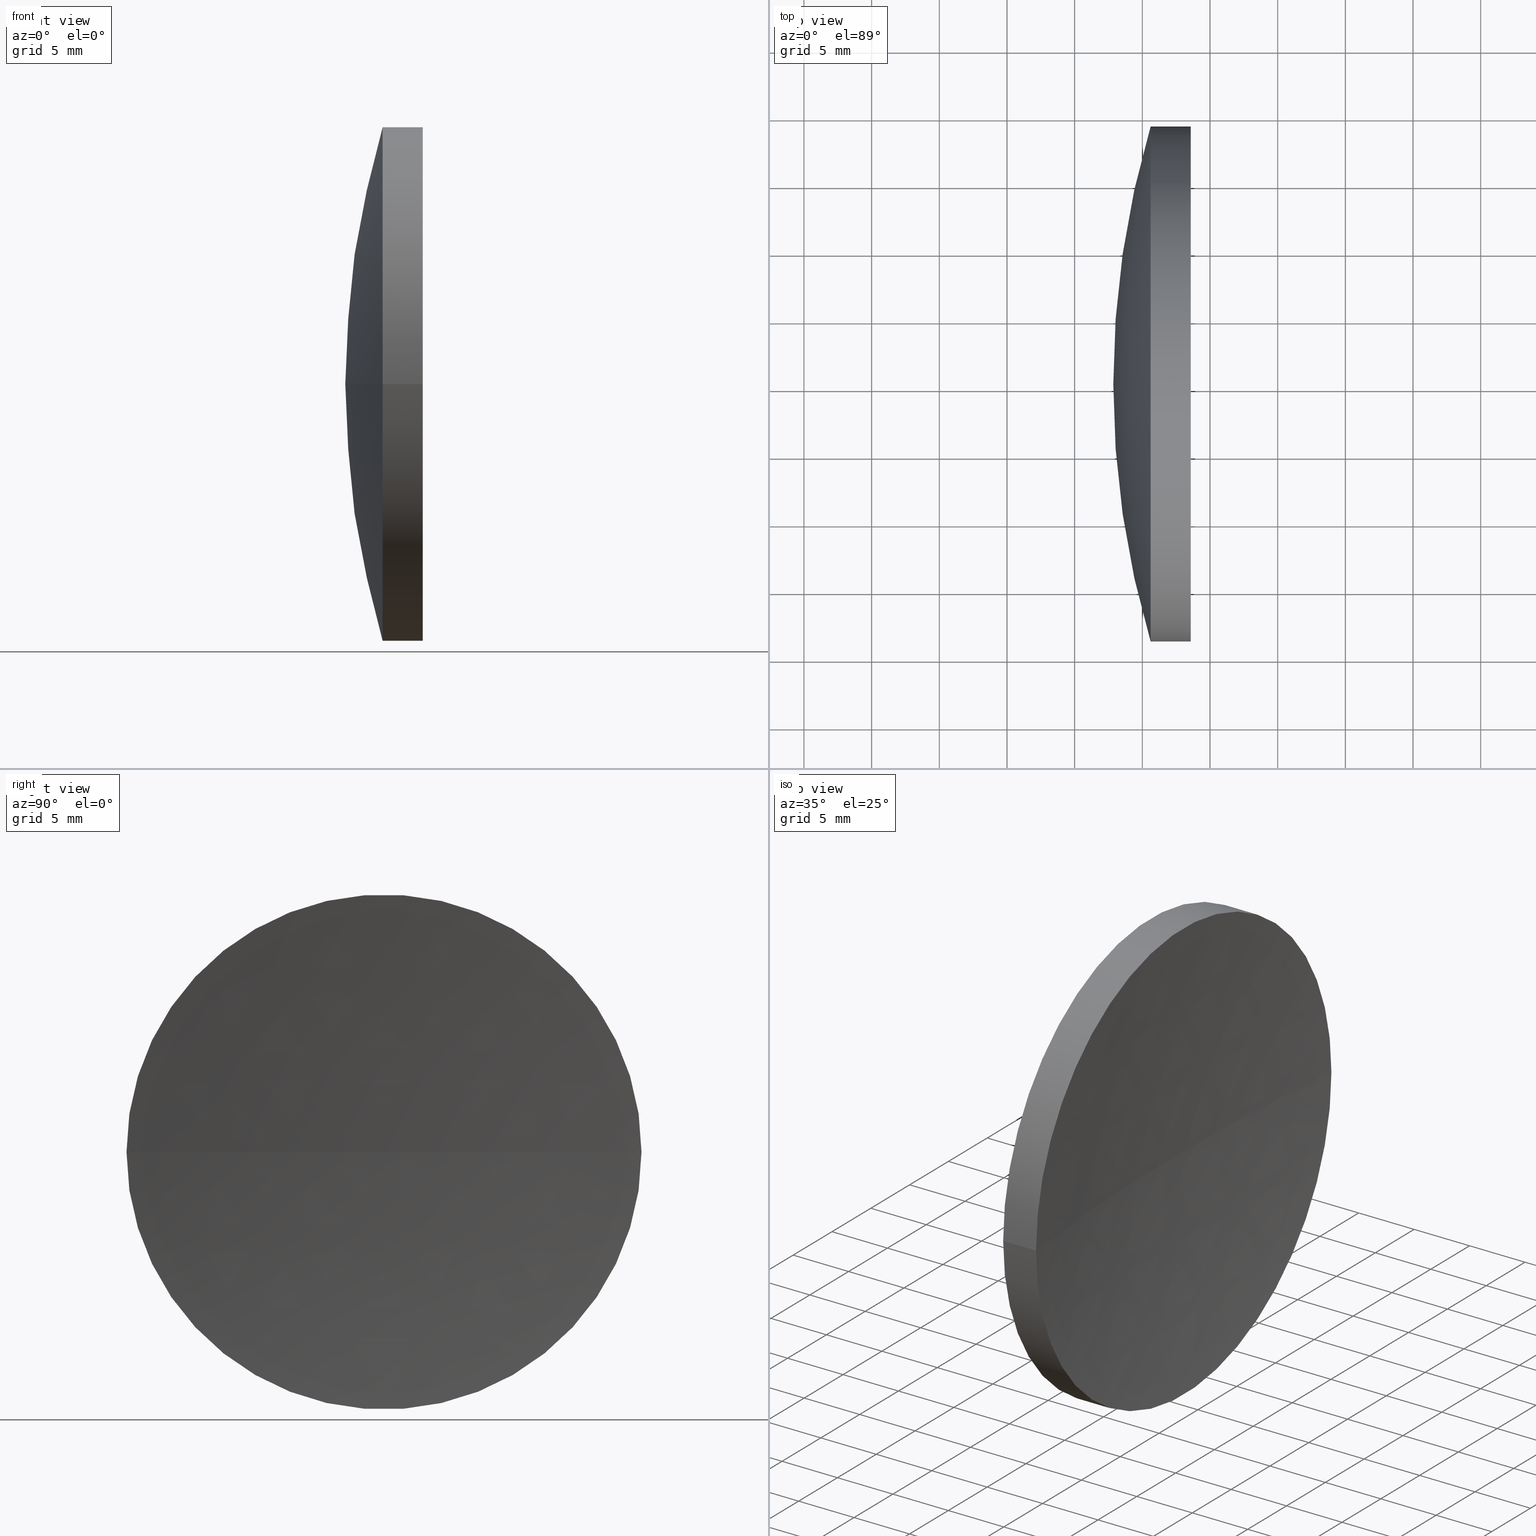
[diagram: canonical four-view strip — front | top / right | iso, engineering-drawing reading convention]
A machine part, canonical four-view strip (front | top / right | iso — engineering-drawing reading convention). The complete STEP part file that produces these views, byte-faithful:
ISO-10303-21;
HEADER;
FILE_DESCRIPTION (( 'STEP AP214' ),
    '1' );
FILE_NAME ('150016.STEP',
    '2019-07-04T08:19:54',
    ( '' ),
    ( '' ),
    'SwSTEP 2.0',
    'SolidWorks 2016',
    '' );
FILE_SCHEMA (( 'AUTOMOTIVE_DESIGN' ));
ENDSEC;

DATA;
#1 = ORIENTED_EDGE ( 'NONE', *, *, #2, .T. ) ;
#2 = EDGE_CURVE ( 'NONE', #31, #136, #70, .T. ) ;
#3 = SURFACE_SIDE_STYLE ('',( #114 ) ) ;
#4 =( NAMED_UNIT ( * ) PLANE_ANGLE_UNIT ( ) SI_UNIT ( $, .RADIAN. ) );
#5 = CIRCLE ( 'NONE', #56, 19.02499999999998800 ) ;
#6 = AXIS2_PLACEMENT_3D ( 'NONE', #130, #48, #153 ) ;
#7 = DIRECTION ( 'NONE',  ( 0.0000000000000000000, -0.0000000000000000000, 1.000000000000000000 ) ) ;
#8 = DIRECTION ( 'NONE',  ( -6.237208003512115800E-016, 1.000000000000000000, 0.0000000000000000000 ) ) ;
#9 = CARTESIAN_POINT ( 'NONE',  ( 125.6133060406054900, 46.19184047094029200, -2.329890535377837100E-015 ) ) ;
#10 = CARTESIAN_POINT ( 'NONE',  ( 125.6133060406054900, 65.21684047094032600, 0.0000000000000000000 ) ) ;
#11 = ORIENTED_EDGE ( 'NONE', *, *, #116, .F. ) ;
#12 = DIRECTION ( 'NONE',  ( -1.000000000000000000, -6.937607244762875000E-016, -0.0000000000000000000 ) ) ;
#13 = EDGE_CURVE ( 'NONE', #139, #180, #5, .T. ) ;
#14 = AXIS2_PLACEMENT_3D ( 'NONE', #33, #131, #157 ) ;
#15 = ADVANCED_BREP_SHAPE_REPRESENTATION ( '150016', ( #110, #144 ), #82 ) ;
#16 = AXIS2_PLACEMENT_3D ( 'NONE', #117, #190, #36 ) ;
#17 = CARTESIAN_POINT ( 'NONE',  ( 0.0000000000000000000, 0.0000000000000000000, 0.0000000000000000000 ) ) ;
#18 = CIRCLE ( 'NONE', #142, 178.0000000000000000 ) ;
#19 = AXIS2_PLACEMENT_3D ( 'NONE', #22, #155, #50 ) ;
#20 = DIRECTION ( 'NONE',  ( 7.294500818824949000E-016, -1.000000000000000000, 0.0000000000000000000 ) ) ;
#21 = CARTESIAN_POINT ( 'NONE',  ( 127.5554213155558000, 65.21684047094015600, 0.0000000000000000000 ) ) ;
#22 = CARTESIAN_POINT ( 'NONE',  ( 128.5750569386001700, 65.21684047094034000, 0.0000000000000000000 ) ) ;
#23 =( LENGTH_UNIT ( ) NAMED_UNIT ( * ) SI_UNIT ( .MILLI., .METRE. ) );
#24 = ORIENTED_EDGE ( 'NONE', *, *, #176, .F. ) ;
#25 = ORIENTED_EDGE ( 'NONE', *, *, #13, .F. ) ;
#26 = EDGE_LOOP ( 'NONE', ( #84, #67, #115, #11 ) ) ;
#27 = DIRECTION ( 'NONE',  ( -0.0000000000000000000, 0.0000000000000000000, -1.000000000000000000 ) ) ;
#28 = ADVANCED_FACE ( 'NONE', ( #34 ), #103, .T. ) ;
#29 = VERTEX_POINT ( 'NONE', #140 ) ;
#30 = CIRCLE ( 'NONE', #184, 67.00000000000002800 ) ;
#31 = VERTEX_POINT ( 'NONE', #87 ) ;
#32 = DIRECTION ( 'NONE',  ( 0.0000000000000000000, -1.000000000000000000, 0.0000000000000000000 ) ) ;
#33 = CARTESIAN_POINT ( 'NONE',  ( 305.5554213155558000, 65.21684047094026900, 0.0000000000000000000 ) ) ;
#34 = FACE_OUTER_BOUND ( 'NONE', #186, .T. ) ;
#35 = PRODUCT_DEFINITION_CONTEXT ( 'detailed design', #161, 'design' ) ;
#36 = DIRECTION ( 'NONE',  ( -6.237208003512115800E-016, 1.000000000000000000, 0.0000000000000000000 ) ) ;
#37 = MECHANICAL_DESIGN_GEOMETRIC_PRESENTATION_REPRESENTATION (  '', ( #78 ), #127 ) ;
#38 = FACE_OUTER_BOUND ( 'NONE', #41, .T. ) ;
#39 = ADVANCED_FACE ( 'NONE', ( #129 ), #61, .F. ) ;
#40 = ORIENTED_EDGE ( 'NONE', *, *, #72, .T. ) ;
#41 = EDGE_LOOP ( 'NONE', ( #183, #151, #40 ) ) ;
#42 = DIRECTION ( 'NONE',  ( -1.000000000000000000, -6.937607244762875000E-016, -0.0000000000000000000 ) ) ;
#43 = EDGE_CURVE ( 'NONE', #180, #139, #104, .T. ) ;
#44 = CARTESIAN_POINT ( 'NONE',  ( 189.8554213155557900, 65.21684047094031200, 0.0000000000000000000 ) ) ;
#45 = CARTESIAN_POINT ( 'NONE',  ( 128.5750569386001700, 84.24184047094037500, 0.0000000000000000000 ) ) ;
#46 = UNCERTAINTY_MEASURE_WITH_UNIT (LENGTH_MEASURE( 1.000000000000000100E-005 ), #124, 'distance_accuracy_value', 'NONE');
#47 = AXIS2_PLACEMENT_3D ( 'NONE', #44, #27, #162 ) ;
#48 = DIRECTION ( 'NONE',  ( -1.000000000000000000, -6.937607244762875000E-016, -0.0000000000000000000 ) ) ;
#49 = DIRECTION ( 'NONE',  ( 0.0000000000000000000, -1.000000000000000000, 0.0000000000000000000 ) ) ;
#50 = DIRECTION ( 'NONE',  ( 0.0000000000000000000, -1.000000000000000000, 0.0000000000000000000 ) ) ;
#51 = EDGE_LOOP ( 'NONE', ( #1, #145, #188 ) ) ;
#52 = CARTESIAN_POINT ( 'NONE',  ( 115.9444912979631700, 65.21684047094032600, 0.0000000000000000000 ) ) ;
#53 = AXIS2_PLACEMENT_3D ( 'NONE', #85, #185, #32 ) ;
#54 = CARTESIAN_POINT ( 'NONE',  ( 115.9444912979631800, 46.19184047094034200, 0.0000000000000000000 ) ) ;
#55 = CARTESIAN_POINT ( 'NONE',  ( 189.8554213155557900, 65.21684047094031200, 0.0000000000000000000 ) ) ;
#56 = AXIS2_PLACEMENT_3D ( 'NONE', #113, #169, #128 ) ;
#57 = VECTOR ( 'NONE', #12, 1000.000000000000000 ) ;
#58 = AXIS2_PLACEMENT_3D ( 'NONE', #10, #68, #49 ) ;
#59 = FILL_AREA_STYLE_COLOUR ( '', #94 ) ;
#60 =( NAMED_UNIT ( * ) SI_UNIT ( $, .STERADIAN. ) SOLID_ANGLE_UNIT ( ) );
#61 = SPHERICAL_SURFACE ( 'NONE', #191, 178.0000000000000000 ) ;
#62 = CARTESIAN_POINT ( 'NONE',  ( 115.9444912979631500, 84.24184047094031800, 2.329890535377837500E-015 ) ) ;
#63 = PRESENTATION_LAYER_ASSIGNMENT (  '', '', ( #78 ) ) ;
#64 = CIRCLE ( 'NONE', #53, 19.02499999999998100 ) ;
#65 = AXIS2_PLACEMENT_3D ( 'NONE', #52, #167, #20 ) ;
#66 = CIRCLE ( 'NONE', #152, 67.00000000000002800 ) ;
#67 = ORIENTED_EDGE ( 'NONE', *, *, #176, .T. ) ;
#68 = DIRECTION ( 'NONE',  ( -1.000000000000000000, -6.937607244762875000E-016, -0.0000000000000000000 ) ) ;
#69 = FILL_AREA_STYLE ('',( #100 ) ) ;
#70 = CIRCLE ( 'NONE', #58, 19.02499999999998100 ) ;
#71 = DIRECTION ( 'NONE',  ( -8.285246452426537700E-016, 1.000000000000000000, 0.0000000000000000000 ) ) ;
#72 = EDGE_CURVE ( 'NONE', #180, #81, #18, .T. ) ;
#73 = ORIENTED_EDGE ( 'NONE', *, *, #2, .F. ) ;
#74 = EDGE_CURVE ( 'NONE', #136, #31, #64, .T. ) ;
#75 = ADVANCED_FACE ( 'NONE', ( #109 ), #170, .T. ) ;
#76 = SPHERICAL_SURFACE ( 'NONE', #137, 67.00000000000002800 ) ;
#77 = SURFACE_STYLE_USAGE ( .BOTH. , #3 ) ;
#78 = STYLED_ITEM ( 'NONE', ( #120 ), #110 ) ;
#79 = DIRECTION ( 'NONE',  ( -8.496118506040342700E-032, 1.224646799147353200E-016, -1.000000000000000000 ) ) ;
#80 = FACE_OUTER_BOUND ( 'NONE', #51, .T. ) ;
#81 = VERTEX_POINT ( 'NONE', #21 ) ;
#82 =( GEOMETRIC_REPRESENTATION_CONTEXT ( 3 ) GLOBAL_UNCERTAINTY_ASSIGNED_CONTEXT ( ( #46 ) ) GLOBAL_UNIT_ASSIGNED_CONTEXT ( ( #124, #4, #60 ) ) REPRESENTATION_CONTEXT ( 'NONE', 'WORKASPACE' ) );
#83 = LINE ( 'NONE', #62, #112 ) ;
#84 = ORIENTED_EDGE ( 'NONE', *, *, #13, .T. ) ;
#85 = CARTESIAN_POINT ( 'NONE',  ( 125.6133060406054900, 65.21684047094032600, 0.0000000000000000000 ) ) ;
#86 = CARTESIAN_POINT ( 'NONE',  ( 305.5554213155558000, 65.21684047094026900, 0.0000000000000000000 ) ) ;
#87 = CARTESIAN_POINT ( 'NONE',  ( 125.6133060406054900, 84.24184047094030300, 0.0000000000000000000 ) ) ;
#88 = ORIENTED_EDGE ( 'NONE', *, *, #74, .T. ) ;
#89 = CARTESIAN_POINT ( 'NONE',  ( 305.5554213155558000, 65.21684047094026900, 0.0000000000000000000 ) ) ;
#90 = EDGE_CURVE ( 'NONE', #139, #81, #133, .T. ) ;
#91 =( NAMED_UNIT ( * ) PLANE_ANGLE_UNIT ( ) SI_UNIT ( $, .RADIAN. ) );
#92 = UNCERTAINTY_MEASURE_WITH_UNIT (LENGTH_MEASURE( 1.000000000000000100E-005 ), #23, 'distance_accuracy_value', 'NONE');
#93 = CARTESIAN_POINT ( 'NONE',  ( 128.5750569386001700, 46.19184047094012200, -2.329890535377843500E-015 ) ) ;
#94 = COLOUR_RGB ( '',1.000000000000000000, 1.000000000000000000, 1.000000000000000000 ) ;
#95 = PRESENTATION_LAYER_ASSIGNMENT (  '', '', ( #166 ) ) ;
#96 = MECHANICAL_DESIGN_GEOMETRIC_PRESENTATION_REPRESENTATION (  '', ( #166 ), #102 ) ;
#97 =( NAMED_UNIT ( * ) PLANE_ANGLE_UNIT ( ) SI_UNIT ( $, .RADIAN. ) );
#98 = FILL_AREA_STYLE ('',( #59 ) ) ;
#99 = PRODUCT_CONTEXT ( 'NONE', #182, 'mechanical' ) ;
#100 = FILL_AREA_STYLE_COLOUR ( '', #177 ) ;
#101 = ORIENTED_EDGE ( 'NONE', *, *, #72, .F. ) ;
#102 =( GEOMETRIC_REPRESENTATION_CONTEXT ( 3 ) GLOBAL_UNCERTAINTY_ASSIGNED_CONTEXT ( ( #173 ) ) GLOBAL_UNIT_ASSIGNED_CONTEXT ( ( #164, #97, #181 ) ) REPRESENTATION_CONTEXT ( 'NONE', 'WORKASPACE' ) );
#103 = CYLINDRICAL_SURFACE ( 'NONE', #65, 19.02499999999998800 ) ;
#104 = CIRCLE ( 'NONE', #19, 19.02499999999998800 ) ;
#105 = DIRECTION ( 'NONE',  ( 1.000000000000000000, 0.0000000000000000000, 0.0000000000000000000 ) ) ;
#106 = CARTESIAN_POINT ( 'NONE',  ( 189.8554213155557900, 65.21684047094031200, 0.0000000000000000000 ) ) ;
#107 = APPLICATION_PROTOCOL_DEFINITION ( 'draft international standard', 'automotive_design', 1998, #161 ) ;
#108 = ORIENTED_EDGE ( 'NONE', *, *, #43, .T. ) ;
#109 = FACE_OUTER_BOUND ( 'NONE', #26, .T. ) ;
#110 = MANIFOLD_SOLID_BREP ( '��ת1', #143 ) ;
#111 = DIRECTION ( 'NONE',  ( 1.000000000000000000, 0.0000000000000000000, 0.0000000000000000000 ) ) ;
#112 = VECTOR ( 'NONE', #42, 1000.000000000000000 ) ;
#113 = CARTESIAN_POINT ( 'NONE',  ( 128.5750569386001700, 65.21684047094034000, 0.0000000000000000000 ) ) ;
#114 = SURFACE_STYLE_FILL_AREA ( #98 ) ;
#115 = ORIENTED_EDGE ( 'NONE', *, *, #74, .F. ) ;
#116 = EDGE_CURVE ( 'NONE', #139, #136, #135, .T. ) ;
#117 = CARTESIAN_POINT ( 'NONE',  ( 305.5554213155558000, 65.21684047094026900, 0.0000000000000000000 ) ) ;
#118 = PRODUCT_DEFINITION_SHAPE ( 'NONE', 'NONE',  #132 ) ;
#119 = SPHERICAL_SURFACE ( 'NONE', #16, 178.0000000000000000 ) ;
#120 = PRESENTATION_STYLE_ASSIGNMENT (( #171 ) ) ;
#121 = ADVANCED_FACE ( 'NONE', ( #38 ), #119, .F. ) ;
#122 = EDGE_LOOP ( 'NONE', ( #148, #88, #156 ) ) ;
#123 = APPLICATION_PROTOCOL_DEFINITION ( 'draft international standard', 'automotive_design', 1998, #182 ) ;
#124 =( LENGTH_UNIT ( ) NAMED_UNIT ( * ) SI_UNIT ( .MILLI., .METRE. ) );
#125 = DIRECTION ( 'NONE',  ( -0.0000000000000000000, 0.0000000000000000000, 1.000000000000000000 ) ) ;
#126 = ORIENTED_EDGE ( 'NONE', *, *, #116, .T. ) ;
#127 =( GEOMETRIC_REPRESENTATION_CONTEXT ( 3 ) GLOBAL_UNCERTAINTY_ASSIGNED_CONTEXT ( ( #92 ) ) GLOBAL_UNIT_ASSIGNED_CONTEXT ( ( #23, #91, #189 ) ) REPRESENTATION_CONTEXT ( 'NONE', 'WORKASPACE' ) );
#128 = DIRECTION ( 'NONE',  ( 0.0000000000000000000, -1.000000000000000000, 0.0000000000000000000 ) ) ;
#129 = FACE_OUTER_BOUND ( 'NONE', #159, .T. ) ;
#130 = CARTESIAN_POINT ( 'NONE',  ( 115.9444912979631700, 65.21684047094032600, 0.0000000000000000000 ) ) ;
#131 = DIRECTION ( 'NONE',  ( -8.496118506040342700E-032, 1.224646799147353200E-016, -1.000000000000000000 ) ) ;
#132 = PRODUCT_DEFINITION ( 'δ֪', '', #146, #35 ) ;
#133 = CIRCLE ( 'NONE', #14, 178.0000000000000000 ) ;
#134 = ADVANCED_FACE ( 'NONE', ( #80 ), #76, .T. ) ;
#135 = LINE ( 'NONE', #54, #57 ) ;
#136 = VERTEX_POINT ( 'NONE', #9 ) ;
#137 = AXIS2_PLACEMENT_3D ( 'NONE', #55, #158, #71 ) ;
#138 = PRODUCT_RELATED_PRODUCT_CATEGORY ( 'part', '', ( #160 ) ) ;
#139 = VERTEX_POINT ( 'NONE', #93 ) ;
#140 = CARTESIAN_POINT ( 'NONE',  ( 122.8554213155557700, 65.21684047094026900, 0.0000000000000000000 ) ) ;
#141 = SURFACE_SIDE_STYLE ('',( #165 ) ) ;
#142 = AXIS2_PLACEMENT_3D ( 'NONE', #86, #7, #111 ) ;
#143 = CLOSED_SHELL ( 'NONE', ( #75, #39, #134, #174, #121, #28 ) ) ;
#144 = AXIS2_PLACEMENT_3D ( 'NONE', #17, #147, #105 ) ;
#145 = ORIENTED_EDGE ( 'NONE', *, *, #187, .T. ) ;
#146 = PRODUCT_DEFINITION_FORMATION_WITH_SPECIFIED_SOURCE ( '�κ�', '', #160, .NOT_KNOWN. ) ;
#147 = DIRECTION ( 'NONE',  ( 0.0000000000000000000, 0.0000000000000000000, 1.000000000000000000 ) ) ;
#148 = ORIENTED_EDGE ( 'NONE', *, *, #187, .F. ) ;
#149 = DIRECTION ( 'NONE',  ( 0.0000000000000000000, 1.000000000000000000, 1.224646799147353000E-016 ) ) ;
#150 = SPHERICAL_SURFACE ( 'NONE', #47, 67.00000000000002800 ) ;
#151 = ORIENTED_EDGE ( 'NONE', *, *, #43, .F. ) ;
#152 = AXIS2_PLACEMENT_3D ( 'NONE', #106, #125, #178 ) ;
#153 = DIRECTION ( 'NONE',  ( 7.294500818824949000E-016, -1.000000000000000000, 0.0000000000000000000 ) ) ;
#154 = SHAPE_DEFINITION_REPRESENTATION ( #118, #15 ) ;
#155 = DIRECTION ( 'NONE',  ( -1.000000000000000000, -6.937607244762875000E-016, -0.0000000000000000000 ) ) ;
#156 = ORIENTED_EDGE ( 'NONE', *, *, #172, .T. ) ;
#157 = DIRECTION ( 'NONE',  ( 0.0000000000000000000, 1.000000000000000000, 1.224646799147353000E-016 ) ) ;
#158 = DIRECTION ( 'NONE',  ( -0.0000000000000000000, 0.0000000000000000000, -1.000000000000000000 ) ) ;
#159 = EDGE_LOOP ( 'NONE', ( #25, #192, #101 ) ) ;
#160 = PRODUCT ( '150016', '150016', '', ( #99 ) ) ;
#161 = APPLICATION_CONTEXT ( 'automotive_design' ) ;
#162 = DIRECTION ( 'NONE',  ( -8.285246452426537700E-016, 1.000000000000000000, 0.0000000000000000000 ) ) ;
#163 = PRESENTATION_STYLE_ASSIGNMENT (( #77 ) ) ;
#164 =( LENGTH_UNIT ( ) NAMED_UNIT ( * ) SI_UNIT ( .MILLI., .METRE. ) );
#165 = SURFACE_STYLE_FILL_AREA ( #69 ) ;
#166 = STYLED_ITEM ( 'NONE', ( #163 ), #15 ) ;
#167 = DIRECTION ( 'NONE',  ( -1.000000000000000000, -6.937607244762875000E-016, -0.0000000000000000000 ) ) ;
#168 = DIRECTION ( 'NONE',  ( 0.0000000000000000000, 0.0000000000000000000, -1.000000000000000000 ) ) ;
#169 = DIRECTION ( 'NONE',  ( -1.000000000000000000, -6.937607244762875000E-016, -0.0000000000000000000 ) ) ;
#170 = CYLINDRICAL_SURFACE ( 'NONE', #6, 19.02499999999998800 ) ;
#171 = SURFACE_STYLE_USAGE ( .BOTH. , #141 ) ;
#172 = EDGE_CURVE ( 'NONE', #31, #29, #66, .T. ) ;
#173 = UNCERTAINTY_MEASURE_WITH_UNIT (LENGTH_MEASURE( 1.000000000000000100E-005 ), #164, 'distance_accuracy_value', 'NONE');
#174 = ADVANCED_FACE ( 'NONE', ( #175 ), #150, .T. ) ;
#175 = FACE_OUTER_BOUND ( 'NONE', #122, .T. ) ;
#176 = EDGE_CURVE ( 'NONE', #180, #31, #83, .T. ) ;
#177 = COLOUR_RGB ( '',1.000000000000000000, 1.000000000000000000, 1.000000000000000000 ) ;
#178 = DIRECTION ( 'NONE',  ( 1.000000000000000000, 0.0000000000000000000, 0.0000000000000000000 ) ) ;
#179 = CARTESIAN_POINT ( 'NONE',  ( 189.8554213155557900, 65.21684047094031200, 0.0000000000000000000 ) ) ;
#180 = VERTEX_POINT ( 'NONE', #45 ) ;
#181 =( NAMED_UNIT ( * ) SI_UNIT ( $, .STERADIAN. ) SOLID_ANGLE_UNIT ( ) );
#182 = APPLICATION_CONTEXT ( 'automotive_design' ) ;
#183 = ORIENTED_EDGE ( 'NONE', *, *, #90, .F. ) ;
#184 = AXIS2_PLACEMENT_3D ( 'NONE', #179, #79, #149 ) ;
#185 = DIRECTION ( 'NONE',  ( -1.000000000000000000, -6.937607244762875000E-016, -0.0000000000000000000 ) ) ;
#186 = EDGE_LOOP ( 'NONE', ( #24, #108, #126, #73 ) ) ;
#187 = EDGE_CURVE ( 'NONE', #136, #29, #30, .T. ) ;
#188 = ORIENTED_EDGE ( 'NONE', *, *, #172, .F. ) ;
#189 =( NAMED_UNIT ( * ) SI_UNIT ( $, .STERADIAN. ) SOLID_ANGLE_UNIT ( ) );
#190 = DIRECTION ( 'NONE',  ( 0.0000000000000000000, 0.0000000000000000000, -1.000000000000000000 ) ) ;
#191 = AXIS2_PLACEMENT_3D ( 'NONE', #89, #168, #8 ) ;
#192 = ORIENTED_EDGE ( 'NONE', *, *, #90, .T. ) ;
ENDSEC;
END-ISO-10303-21;
